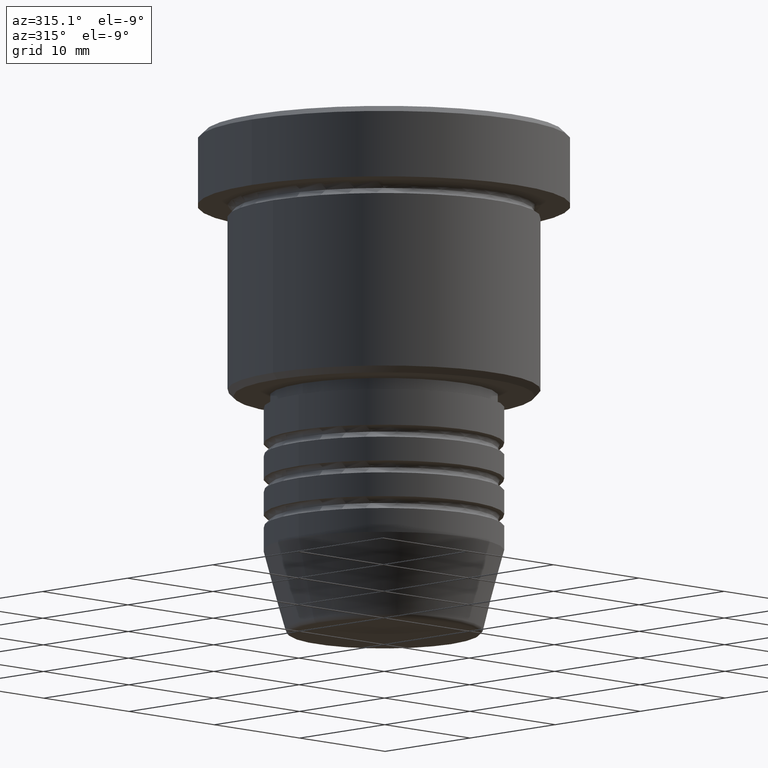
[diagram: clean part render]
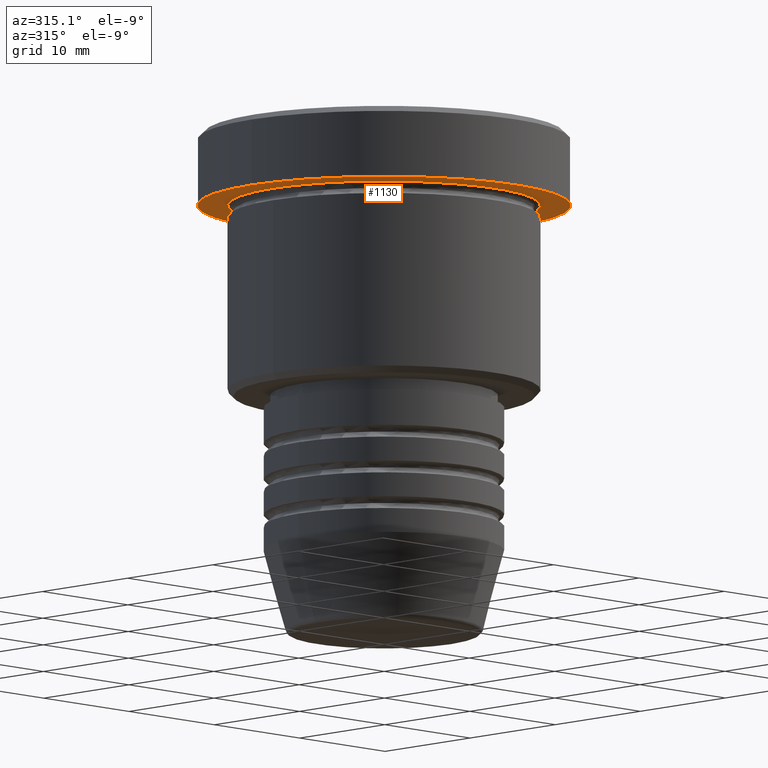
[diagram: same view with one face highlighted and labeled with its STEP entity id]
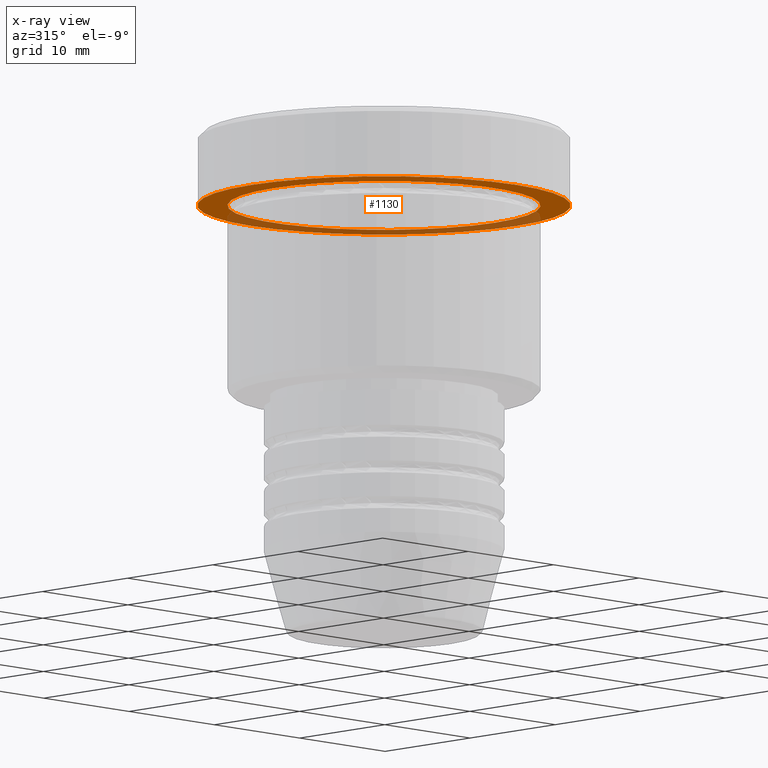
[diagram: x-ray of the same camera — body ghosted, the highlighted face saturated]
A machine part, auxiliary view. The second image highlights one B-rep face of the part: STEP entity #1130.
The next image is the same camera in x-ray: the body ghosted, the highlighted face saturated — about 37% of this face is hidden behind the body in this view.
In plain terms, the highlighted planar face has unit normal (0, 0, -1).
Its self-contained STEP definition (entity closure, byte-faithful):
#13 = CIRCLE ( 'NONE', #271, 15.50000000000000000 ) ;
#22 = EDGE_LOOP ( 'NONE', ( #229, #294 ) ) ;
#24 = DIRECTION ( 'NONE',  ( -0.000000000000000000, -0.000000000000000000, 1.000000000000000000 ) ) ;
#60 = EDGE_LOOP ( 'NONE', ( #681, #1009 ) ) ;
#72 = VERTEX_POINT ( 'NONE', #826 ) ;
#82 = CARTESIAN_POINT ( 'NONE',  ( -13.00000000000000000, 0.000000000000000000, -5.999999999999994671 ) ) ;
#138 = EDGE_CURVE ( 'NONE', #669, #650, #523, .T. ) ;
#152 = EDGE_CURVE ( 'NONE', #1086, #72, #357, .T. ) ;
#162 = DIRECTION ( 'NONE',  ( 0.000000000000000000, 0.000000000000000000, -1.000000000000000000 ) ) ;
#168 = CARTESIAN_POINT ( 'NONE',  ( 0.000000000000000000, 0.000000000000000000, -5.999999999999995559 ) ) ;
#229 = ORIENTED_EDGE ( 'NONE', *, *, #138, .T. ) ;
#240 = CARTESIAN_POINT ( 'NONE',  ( 0.000000000000000000, 0.000000000000000000, -5.999999999999995559 ) ) ;
#271 = AXIS2_PLACEMENT_3D ( 'NONE', #240, #858, #1039 ) ;
#288 = CIRCLE ( 'NONE', #722, 13.00000000000000000 ) ;
#294 = ORIENTED_EDGE ( 'NONE', *, *, #955, .T. ) ;
#303 = CARTESIAN_POINT ( 'NONE',  ( 0.000000000000000000, 0.000000000000000000, -5.999999999999995559 ) ) ;
#357 = CIRCLE ( 'NONE', #719, 15.50000000000000000 ) ;
#446 = CARTESIAN_POINT ( 'NONE',  ( 0.000000000000000000, 15.50000000000000000, -5.999999999999995559 ) ) ;
#523 = CIRCLE ( 'NONE', #907, 13.00000000000000000 ) ;
#532 = DIRECTION ( 'NONE',  ( -0.000000000000000000, -0.000000000000000000, 1.000000000000000000 ) ) ;
#577 = DIRECTION ( 'NONE',  ( 1.000000000000000000, 0.000000000000000000, 0.000000000000000000 ) ) ;
#601 = DIRECTION ( 'NONE',  ( -1.000000000000000000, 0.000000000000000000, 0.000000000000000000 ) ) ;
#628 = FACE_BOUND ( 'NONE', #22, .T. ) ;
#650 = VERTEX_POINT ( 'NONE', #897 ) ;
#669 = VERTEX_POINT ( 'NONE', #82 ) ;
#675 = CARTESIAN_POINT ( 'NONE',  ( 0.000000000000000000, 0.000000000000000000, -5.999999999999995559 ) ) ;
#681 = ORIENTED_EDGE ( 'NONE', *, *, #152, .F. ) ;
#696 = DIRECTION ( 'NONE',  ( -1.000000000000000000, 0.000000000000000000, -0.000000000000000000 ) ) ;
#719 = AXIS2_PLACEMENT_3D ( 'NONE', #303, #24, #577 ) ;
#722 = AXIS2_PLACEMENT_3D ( 'NONE', #168, #532, #1138 ) ;
#777 = AXIS2_PLACEMENT_3D ( 'NONE', #446, #162, #696 ) ;
#826 = CARTESIAN_POINT ( 'NONE',  ( -15.50000000000000000, 1.898202538678397557E-15, -5.999999999999995559 ) ) ;
#858 = DIRECTION ( 'NONE',  ( -0.000000000000000000, -0.000000000000000000, 1.000000000000000000 ) ) ;
#866 = CARTESIAN_POINT ( 'NONE',  ( 15.50000000000000000, 0.000000000000000000, -5.999999999999995559 ) ) ;
#897 = CARTESIAN_POINT ( 'NONE',  ( 13.00000000000000000, 1.592040838891559095E-15, -5.999999999999994671 ) ) ;
#907 = AXIS2_PLACEMENT_3D ( 'NONE', #675, #1047, #601 ) ;
#918 = FACE_OUTER_BOUND ( 'NONE', #60, .T. ) ;
#955 = EDGE_CURVE ( 'NONE', #650, #669, #288, .T. ) ;
#1009 = ORIENTED_EDGE ( 'NONE', *, *, #1044, .F. ) ;
#1039 = DIRECTION ( 'NONE',  ( 1.000000000000000000, 0.000000000000000000, 0.000000000000000000 ) ) ;
#1044 = EDGE_CURVE ( 'NONE', #72, #1086, #13, .T. ) ;
#1047 = DIRECTION ( 'NONE',  ( -0.000000000000000000, -0.000000000000000000, 1.000000000000000000 ) ) ;
#1086 = VERTEX_POINT ( 'NONE', #866 ) ;
#1127 = PLANE ( 'NONE',  #777 ) ;
#1130 = ADVANCED_FACE ( 'NONE', ( #628, #918 ), #1127, .T. ) ;
#1138 = DIRECTION ( 'NONE',  ( -1.000000000000000000, 0.000000000000000000, 0.000000000000000000 ) ) ;